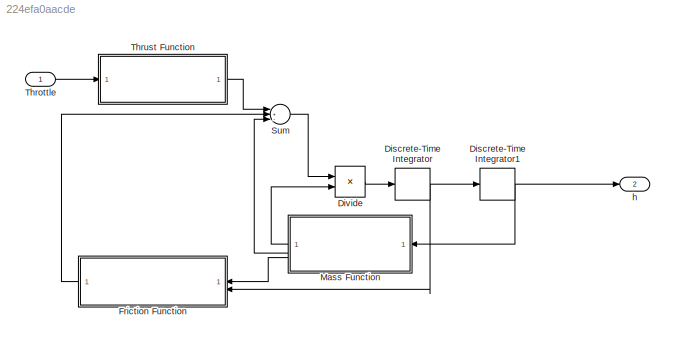
MODEL slx_224efa0aacde
KIND model
CONFIG AbsTol = auto
CONFIG EnableMultiTasking = off
CONFIG FixedStep = auto
CONFIG MaxStep = auto
CONFIG MinStep = auto
CONFIG RelTol = 1e-3
CONFIG SampleTimeConstraint = Unconstrained
CONFIG SolverName = VariableStepAuto
CONFIG StartTime = 0.0
CONFIG StopTime = 10.0
BLOCK [DiscreteIntegrator] Discrete-Time Integrator
  ICPrevOutput = DiscIntNeverNeededParam
  ICPrevScaledInput = DiscIntNeverNeededParam
  InitialConditionSetting = Auto
  SampleTime = -1
BLOCK [DiscreteIntegrator] Discrete-Time Integrator1
  ICPrevOutput = DiscIntNeverNeededParam
  ICPrevScaledInput = DiscIntNeverNeededParam
  InitialConditionSetting = Auto
  SampleTime = -1
BLOCK [Product] Divide
  Inputs = */
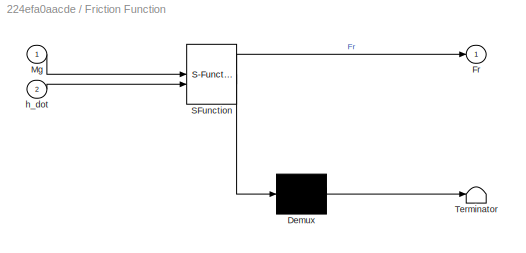
BLOCK [SubSystem] Friction Function
  ErrorFcn = Stateflow.Translate.translate
  PermitHierarchicalResolution = ExplicitOnly
  SFBlockType = MATLAB Function
  TreatAsAtomicUnit = on
BLOCK [Demux] Friction Function/ Demux 
  Outputs = 1
BLOCK [S-Function] Friction Function/ SFunction 
  EnableBusSupport = off
  FunctionName = sf_sfun
  PortCounts = [2 2]
  SFcnIsStateOwnerBlock = off
  SFunctionDeploymentMode = off
  Tag = Stateflow S-Function 3
BLOCK [Terminator] Friction Function/ Terminator 
BLOCK [Outport] Friction Function/Fr
BLOCK [Inport] Friction Function/Mg
BLOCK [Inport] Friction Function/h_dot
  Port = 2
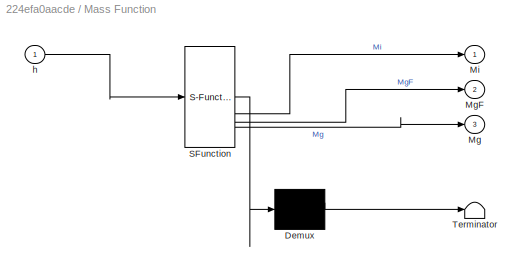
BLOCK [SubSystem] Mass Function
  ErrorFcn = Stateflow.Translate.translate
  PermitHierarchicalResolution = ExplicitOnly
  SFBlockType = MATLAB Function
  TreatAsAtomicUnit = on
BLOCK [Demux] Mass Function/ Demux 
  Outputs = 1
BLOCK [S-Function] Mass Function/ SFunction 
  EnableBusSupport = off
  FunctionName = sf_sfun
  PortCounts = [1 4]
  SFcnIsStateOwnerBlock = off
  SFunctionDeploymentMode = off
  Tag = Stateflow S-Function 1
BLOCK [Terminator] Mass Function/ Terminator 
BLOCK [Outport] Mass Function/Mg
  Port = 3
BLOCK [Outport] Mass Function/MgF
  Port = 2
BLOCK [Outport] Mass Function/Mi
BLOCK [Inport] Mass Function/h
BLOCK [Sum] Sum
  Inputs = |+--
BLOCK [Inport] Throttle
  OutDataTypeStr = int8
  OutMax = 100
  OutMin = 0
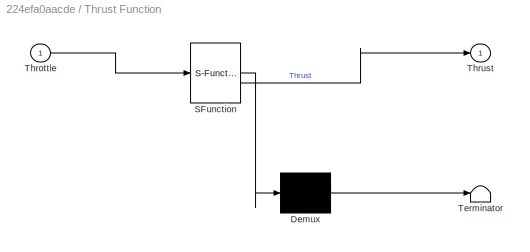
BLOCK [SubSystem] Thrust Function
  ErrorFcn = Stateflow.Translate.translate
  PermitHierarchicalResolution = ExplicitOnly
  SFBlockType = MATLAB Function
  TreatAsAtomicUnit = on
BLOCK [Demux] Thrust Function/ Demux 
  Outputs = 1
BLOCK [S-Function] Thrust Function/ SFunction 
  EnableBusSupport = off
  FunctionName = sf_sfun
  PortCounts = [1 2]
  SFcnIsStateOwnerBlock = off
  SFunctionDeploymentMode = off
  Tag = Stateflow S-Function 2
BLOCK [Terminator] Thrust Function/ Terminator 
BLOCK [Inport] Thrust Function/Throttle
BLOCK [Outport] Thrust Function/Thrust
BLOCK [Outport] h
  Port = 2
NET Discrete-Time Integrator1:1 -> Mass Function:1, h:1
NET Discrete-Time Integrator:1 -> Discrete-Time Integrator1:1, Friction Function:2
LINE Divide:1 -> Discrete-Time Integrator:1
LINE Friction Function:1 -> Sum:2
LINE Mass Function:1 -> Divide:2
LINE Mass Function:2 -> Sum:3
LINE Mass Function:3 -> Friction Function:1
LINE Sum:1 -> Divide:1
LINE Throttle:1 -> Thrust Function:1
LINE Thrust Function:1 -> Sum:1
note: NET lines group one-source signal fan-out (src -> all destinations, sorted); 1:1 wires keep LINE
CHART Thrust Function states=1 transitions=1
  STATE_LABEL 'eML_blk_kernel()'
  STATE_LABEL 'SCRIPT:\nfunction Thrust = ThrustFunction(Throttle)\n\nThrust = Throttle;\n'
CHART Friction Function states=1 transitions=1
  STATE_LABEL 'eML_blk_kernel()'
  STATE_LABEL 'SCRIPT:\nfunction Fr = FrictionFunction(Mg, h_dot)\n\nCdf = 0.17; %Coefficient of Dynamic Friction\n\nif h_dot == 0\n    Fr = 0.26 * 9.81; %static friction\nelse\n    %% THIS IS A PLACEHOLDER\n    N = 0.1 * Mg; %Normal reaction force \n    Fr = (abs(h_dot)/h_dot)*Cdf*N;\nend\n'
CHART Mass Function states=1 transitions=1
  STATE_LABEL 'eML_blk_kernel()'
  STATE_LABEL 'SCRIPT:\nfunction [Mi, MgF, Mg] = MassFunction(h)\n\n%Given Masses in Kg\nMm = 0.328; %Motor Mass\nMa = 0.05; %Arm Mass\nMk = 0.15; %Cart Mass\n\nM_constant = Mm + Mk + Ma;\n\nMc = 0.095*h + 0.532; %mass of cable is function of height\n\nMg = M_constant + Mc; %gravitational load\nMi = Mg + 0.8 + 0.328; % gravitational + carriage + counterweight + 8 sliders\n\nMgF = Mg * 9.81;\n\n\n\n\n\n'
CHART  states=0 transitions=0
CHART  states=0 transitions=0
CHART  states=0 transitions=0
